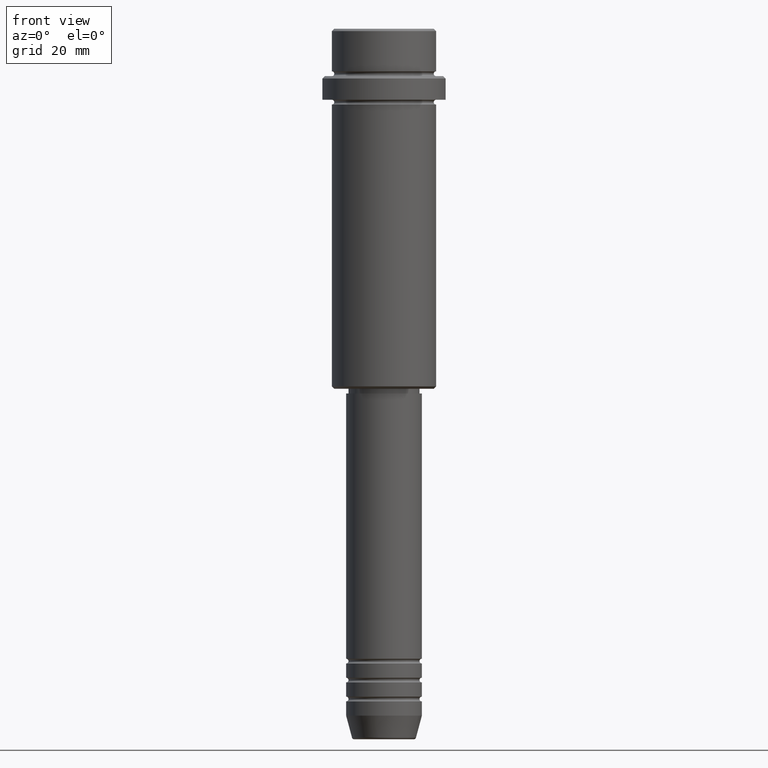
[diagram: clean part render]
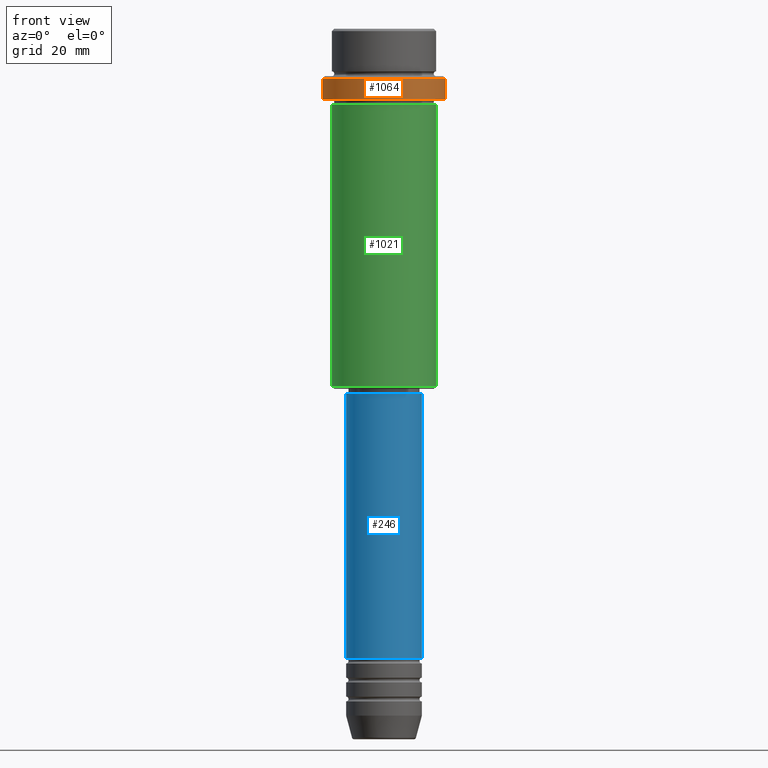
[diagram: same view with three faces highlighted in distinct colors, each labeled with its STEP entity id]
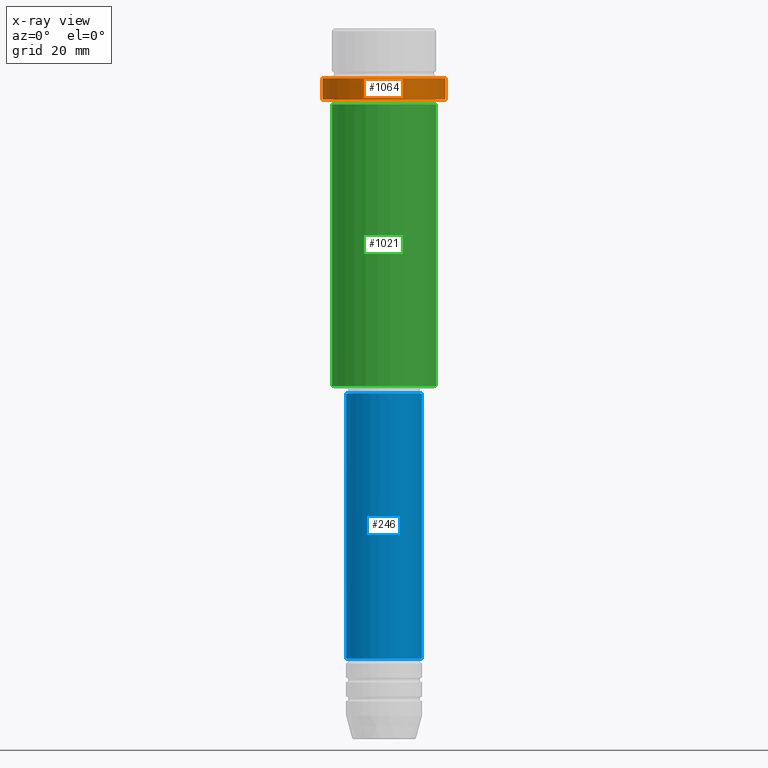
[diagram: x-ray of the same camera — body ghosted, the three highlighted faces saturated]
A machine part, front view with three faces highlighted in distinct colors.
The next image is the same camera in x-ray (body ghosted, the three faces saturated) — at least one of them is partly hidden behind the body in this view.
Their STEP definitions:

[orange] entity #1064 — the highlighted cylindrical surface (partial cylindrical patch) has radius 13 mm, axis along (-0, -0, 1).
#34 = VECTOR ( 'NONE', #304, 1000.000000000000000 ) ;
#57 = ORIENTED_EDGE ( 'NONE', *, *, #1200, .T. ) ;
#86 = VERTEX_POINT ( 'NONE', #829 ) ;
#151 = EDGE_CURVE ( 'NONE', #720, #933, #1149, .T. ) ;
#159 = DIRECTION ( 'NONE',  ( 0.000000000000000000, 0.000000000000000000, -1.000000000000000000 ) ) ;
#169 = AXIS2_PLACEMENT_3D ( 'NONE', #395, #159, #1257 ) ;
#257 = ORIENTED_EDGE ( 'NONE', *, *, #1383, .T. ) ;
#304 = DIRECTION ( 'NONE',  ( -0.000000000000000000, -0.000000000000000000, 1.000000000000000000 ) ) ;
#306 = EDGE_LOOP ( 'NONE', ( #763, #257, #57, #497 ) ) ;
#316 = CIRCLE ( 'NONE', #1053, 13.00000000000000000 ) ;
#376 = EDGE_CURVE ( 'NONE', #1026, #933, #467, .T. ) ;
#395 = CARTESIAN_POINT ( 'NONE',  ( 0.000000000000000000, 0.000000000000000000, -10.49999999999999289 ) ) ;
#409 = DIRECTION ( 'NONE',  ( -0.000000000000000000, -0.000000000000000000, 1.000000000000000000 ) ) ;
#466 = DIRECTION ( 'NONE',  ( -0.000000000000000000, -0.000000000000000000, 1.000000000000000000 ) ) ;
#467 = CIRCLE ( 'NONE', #169, 13.00000000000000000 ) ;
#497 = ORIENTED_EDGE ( 'NONE', *, *, #376, .T. ) ;
#592 = CARTESIAN_POINT ( 'NONE',  ( -13.00000000000000000, 1.592040838891559095E-15, -15.00000000000000178 ) ) ;
#603 = VECTOR ( 'NONE', #966, 1000.000000000000000 ) ;
#619 = CARTESIAN_POINT ( 'NONE',  ( 0.000000000000000000, 0.000000000000000000, -15.00000000000000178 ) ) ;
#693 = DIRECTION ( 'NONE',  ( 1.000000000000000000, 0.000000000000000000, 0.000000000000000000 ) ) ;
#720 = VERTEX_POINT ( 'NONE', #592 ) ;
#763 = ORIENTED_EDGE ( 'NONE', *, *, #151, .F. ) ;
#771 = CARTESIAN_POINT ( 'NONE',  ( 13.00000000000000000, 0.000000000000000000, -10.49999999999999289 ) ) ;
#803 = CYLINDRICAL_SURFACE ( 'NONE', #941, 13.00000000000000000 ) ;
#822 = CARTESIAN_POINT ( 'NONE',  ( -13.00000000000000000, 1.592040838891559095E-15, -10.49999999999999289 ) ) ;
#829 = CARTESIAN_POINT ( 'NONE',  ( 13.00000000000000000, 0.000000000000000000, -15.00000000000000178 ) ) ;
#842 = DIRECTION ( 'NONE',  ( 1.000000000000000000, 0.000000000000000000, 0.000000000000000000 ) ) ;
#899 = CARTESIAN_POINT ( 'NONE',  ( -13.00000000000000000, 1.592040838891559095E-15, 0.000000000000000000 ) ) ;
#933 = VERTEX_POINT ( 'NONE', #822 ) ;
#941 = AXIS2_PLACEMENT_3D ( 'NONE', #1111, #466, #693 ) ;
#966 = DIRECTION ( 'NONE',  ( -0.000000000000000000, -0.000000000000000000, 1.000000000000000000 ) ) ;
#1026 = VERTEX_POINT ( 'NONE', #771 ) ;
#1053 = AXIS2_PLACEMENT_3D ( 'NONE', #619, #409, #842 ) ;
#1064 = ADVANCED_FACE ( 'NONE', ( #1220 ), #803, .T. ) ;
#1111 = CARTESIAN_POINT ( 'NONE',  ( 0.000000000000000000, 0.000000000000000000, 0.000000000000000000 ) ) ;
#1147 = LINE ( 'NONE', #1273, #34 ) ;
#1149 = LINE ( 'NONE', #899, #603 ) ;
#1200 = EDGE_CURVE ( 'NONE', #86, #1026, #1147, .T. ) ;
#1220 = FACE_OUTER_BOUND ( 'NONE', #306, .T. ) ;
#1257 = DIRECTION ( 'NONE',  ( 1.000000000000000000, 0.000000000000000000, 0.000000000000000000 ) ) ;
#1273 = CARTESIAN_POINT ( 'NONE',  ( 13.00000000000000000, 0.000000000000000000, 0.000000000000000000 ) ) ;
#1383 = EDGE_CURVE ( 'NONE', #720, #86, #316, .T. ) ;

[blue] entity #246 — the highlighted cylindrical surface (partial cylindrical patch) has radius 8 mm, axis along (-0, -0, 1).
#51 = VECTOR ( 'NONE', #149, 1000.000000000000000 ) ;
#66 = AXIS2_PLACEMENT_3D ( 'NONE', #111, #353, #94 ) ;
#72 = CIRCLE ( 'NONE', #270, 8.000000000000000000 ) ;
#94 = DIRECTION ( 'NONE',  ( 1.000000000000000000, 0.000000000000000000, 0.000000000000000000 ) ) ;
#101 = DIRECTION ( 'NONE',  ( -0.000000000000000000, -0.000000000000000000, 1.000000000000000000 ) ) ;
#109 = DIRECTION ( 'NONE',  ( -0.000000000000000000, -0.000000000000000000, 1.000000000000000000 ) ) ;
#111 = CARTESIAN_POINT ( 'NONE',  ( 0.000000000000000000, 0.000000000000000000, 0.000000000000000000 ) ) ;
#142 = CARTESIAN_POINT ( 'NONE',  ( -8.000000000000000000, 9.797174393178825657E-16, 0.000000000000000000 ) ) ;
#149 = DIRECTION ( 'NONE',  ( -0.000000000000000000, -0.000000000000000000, 1.000000000000000000 ) ) ;
#173 = DIRECTION ( 'NONE',  ( -0.000000000000000000, -0.000000000000000000, 1.000000000000000000 ) ) ;
#174 = EDGE_LOOP ( 'NONE', ( #1276, #1024, #876, #860 ) ) ;
#186 = VERTEX_POINT ( 'NONE', #1206 ) ;
#246 = ADVANCED_FACE ( 'NONE', ( #1327 ), #1087, .T. ) ;
#270 = AXIS2_PLACEMENT_3D ( 'NONE', #1256, #173, #708 ) ;
#308 = CARTESIAN_POINT ( 'NONE',  ( 8.000000000000000000, 0.000000000000000000, -132.9999999999998863 ) ) ;
#353 = DIRECTION ( 'NONE',  ( -0.000000000000000000, -0.000000000000000000, 1.000000000000000000 ) ) ;
#366 = LINE ( 'NONE', #142, #51 ) ;
#417 = EDGE_CURVE ( 'NONE', #849, #1258, #505, .T. ) ;
#448 = EDGE_CURVE ( 'NONE', #976, #1258, #1072, .T. ) ;
#505 = CIRCLE ( 'NONE', #1160, 8.000000000000000000 ) ;
#708 = DIRECTION ( 'NONE',  ( 1.000000000000000000, 0.000000000000000000, 0.000000000000000000 ) ) ;
#711 = EDGE_CURVE ( 'NONE', #186, #849, #366, .T. ) ;
#849 = VERTEX_POINT ( 'NONE', #1235 ) ;
#860 = ORIENTED_EDGE ( 'NONE', *, *, #417, .F. ) ;
#869 = CARTESIAN_POINT ( 'NONE',  ( 0.000000000000000000, 0.000000000000000000, -77.00000000000000000 ) ) ;
#876 = ORIENTED_EDGE ( 'NONE', *, *, #448, .T. ) ;
#881 = DIRECTION ( 'NONE',  ( 1.000000000000000000, 0.000000000000000000, 0.000000000000000000 ) ) ;
#976 = VERTEX_POINT ( 'NONE', #308 ) ;
#1024 = ORIENTED_EDGE ( 'NONE', *, *, #1363, .T. ) ;
#1072 = LINE ( 'NONE', #1184, #1311 ) ;
#1087 = CYLINDRICAL_SURFACE ( 'NONE', #66, 8.000000000000000000 ) ;
#1160 = AXIS2_PLACEMENT_3D ( 'NONE', #869, #109, #881 ) ;
#1184 = CARTESIAN_POINT ( 'NONE',  ( 8.000000000000000000, 0.000000000000000000, 0.000000000000000000 ) ) ;
#1206 = CARTESIAN_POINT ( 'NONE',  ( -8.000000000000000000, 9.797174393178825657E-16, -132.9999999999998863 ) ) ;
#1235 = CARTESIAN_POINT ( 'NONE',  ( -8.000000000000000000, 9.797174393178825657E-16, -77.00000000000000000 ) ) ;
#1256 = CARTESIAN_POINT ( 'NONE',  ( 0.000000000000000000, 0.000000000000000000, -132.9999999999998863 ) ) ;
#1258 = VERTEX_POINT ( 'NONE', #1399 ) ;
#1276 = ORIENTED_EDGE ( 'NONE', *, *, #711, .F. ) ;
#1311 = VECTOR ( 'NONE', #101, 1000.000000000000000 ) ;
#1327 = FACE_OUTER_BOUND ( 'NONE', #174, .T. ) ;
#1363 = EDGE_CURVE ( 'NONE', #186, #976, #72, .T. ) ;
#1399 = CARTESIAN_POINT ( 'NONE',  ( 8.000000000000000000, 0.000000000000000000, -77.00000000000000000 ) ) ;

[green] entity #1021 — the highlighted cylindrical surface (partial cylindrical patch) has radius 11 mm, axis along (-0, -0, 1).
#14 = DIRECTION ( 'NONE',  ( -0.000000000000000000, -0.000000000000000000, 1.000000000000000000 ) ) ;
#29 = ORIENTED_EDGE ( 'NONE', *, *, #992, .T. ) ;
#90 = CYLINDRICAL_SURFACE ( 'NONE', #831, 10.99999999999998757 ) ;
#137 = VERTEX_POINT ( 'NONE', #1265 ) ;
#138 = CARTESIAN_POINT ( 'NONE',  ( 10.99999999999998757, 0.000000000000000000, -75.50000000000002842 ) ) ;
#195 = ORIENTED_EDGE ( 'NONE', *, *, #552, .T. ) ;
#222 = CARTESIAN_POINT ( 'NONE',  ( -10.99999999999998757, 1.347111479062086827E-15, 0.000000000000000000 ) ) ;
#255 = DIRECTION ( 'NONE',  ( -1.000000000000000000, 0.000000000000000000, 0.000000000000000000 ) ) ;
#264 = VECTOR ( 'NONE', #14, 1000.000000000000000 ) ;
#265 = EDGE_CURVE ( 'NONE', #137, #617, #1198, .T. ) ;
#328 = FACE_OUTER_BOUND ( 'NONE', #843, .T. ) ;
#443 = CARTESIAN_POINT ( 'NONE',  ( 0.000000000000000000, 0.000000000000000000, 0.000000000000000000 ) ) ;
#446 = AXIS2_PLACEMENT_3D ( 'NONE', #772, #1335, #1205 ) ;
#472 = DIRECTION ( 'NONE',  ( -0.000000000000000000, -0.000000000000000000, 1.000000000000000000 ) ) ;
#552 = EDGE_CURVE ( 'NONE', #1303, #1056, #1249, .T. ) ;
#617 = VERTEX_POINT ( 'NONE', #655 ) ;
#650 = DIRECTION ( 'NONE',  ( 1.000000000000000000, 0.000000000000000000, 0.000000000000000000 ) ) ;
#655 = CARTESIAN_POINT ( 'NONE',  ( -10.99999999999997158, 1.347111479062085841E-15, -16.00000000000000355 ) ) ;
#695 = VECTOR ( 'NONE', #1121, 1000.000000000000000 ) ;
#772 = CARTESIAN_POINT ( 'NONE',  ( 0.000000000000000000, 0.000000000000000000, -16.00000000000000355 ) ) ;
#809 = CIRCLE ( 'NONE', #939, 10.99999999999998757 ) ;
#817 = EDGE_CURVE ( 'NONE', #617, #1056, #1342, .T. ) ;
#831 = AXIS2_PLACEMENT_3D ( 'NONE', #443, #1177, #650 ) ;
#843 = EDGE_LOOP ( 'NONE', ( #1367, #29, #195, #1226 ) ) ;
#910 = CARTESIAN_POINT ( 'NONE',  ( 10.99999999999997158, 0.000000000000000000, -16.00000000000000355 ) ) ;
#939 = AXIS2_PLACEMENT_3D ( 'NONE', #1113, #472, #255 ) ;
#992 = EDGE_CURVE ( 'NONE', #137, #1303, #809, .T. ) ;
#1021 = ADVANCED_FACE ( 'NONE', ( #328 ), #90, .T. ) ;
#1056 = VERTEX_POINT ( 'NONE', #910 ) ;
#1113 = CARTESIAN_POINT ( 'NONE',  ( 0.000000000000000000, 0.000000000000000000, -75.50000000000002842 ) ) ;
#1121 = DIRECTION ( 'NONE',  ( -0.000000000000000000, -0.000000000000000000, 1.000000000000000000 ) ) ;
#1177 = DIRECTION ( 'NONE',  ( -0.000000000000000000, -0.000000000000000000, 1.000000000000000000 ) ) ;
#1198 = LINE ( 'NONE', #222, #264 ) ;
#1205 = DIRECTION ( 'NONE',  ( 1.000000000000000000, 0.000000000000000000, 0.000000000000000000 ) ) ;
#1226 = ORIENTED_EDGE ( 'NONE', *, *, #817, .F. ) ;
#1249 = LINE ( 'NONE', #1344, #695 ) ;
#1265 = CARTESIAN_POINT ( 'NONE',  ( -10.99999999999998757, 1.347111479062086827E-15, -75.50000000000002842 ) ) ;
#1303 = VERTEX_POINT ( 'NONE', #138 ) ;
#1335 = DIRECTION ( 'NONE',  ( -0.000000000000000000, -0.000000000000000000, 1.000000000000000000 ) ) ;
#1342 = CIRCLE ( 'NONE', #446, 10.99999999999997158 ) ;
#1344 = CARTESIAN_POINT ( 'NONE',  ( 10.99999999999998757, 0.000000000000000000, 0.000000000000000000 ) ) ;
#1367 = ORIENTED_EDGE ( 'NONE', *, *, #265, .F. ) ;